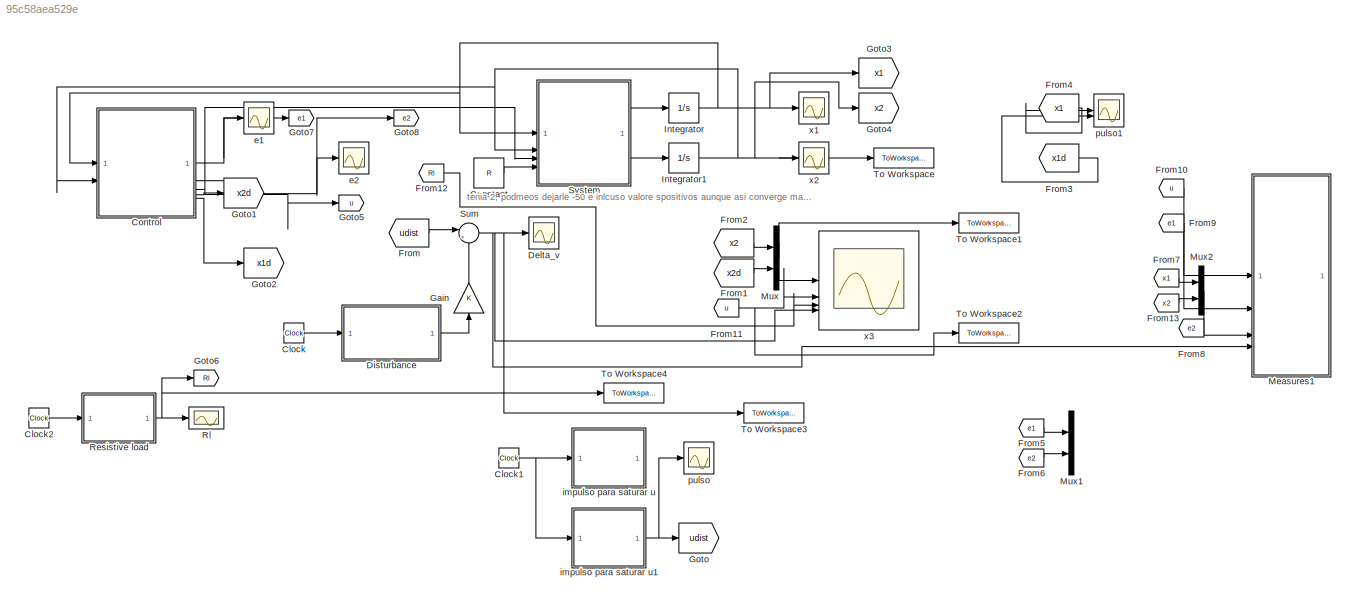
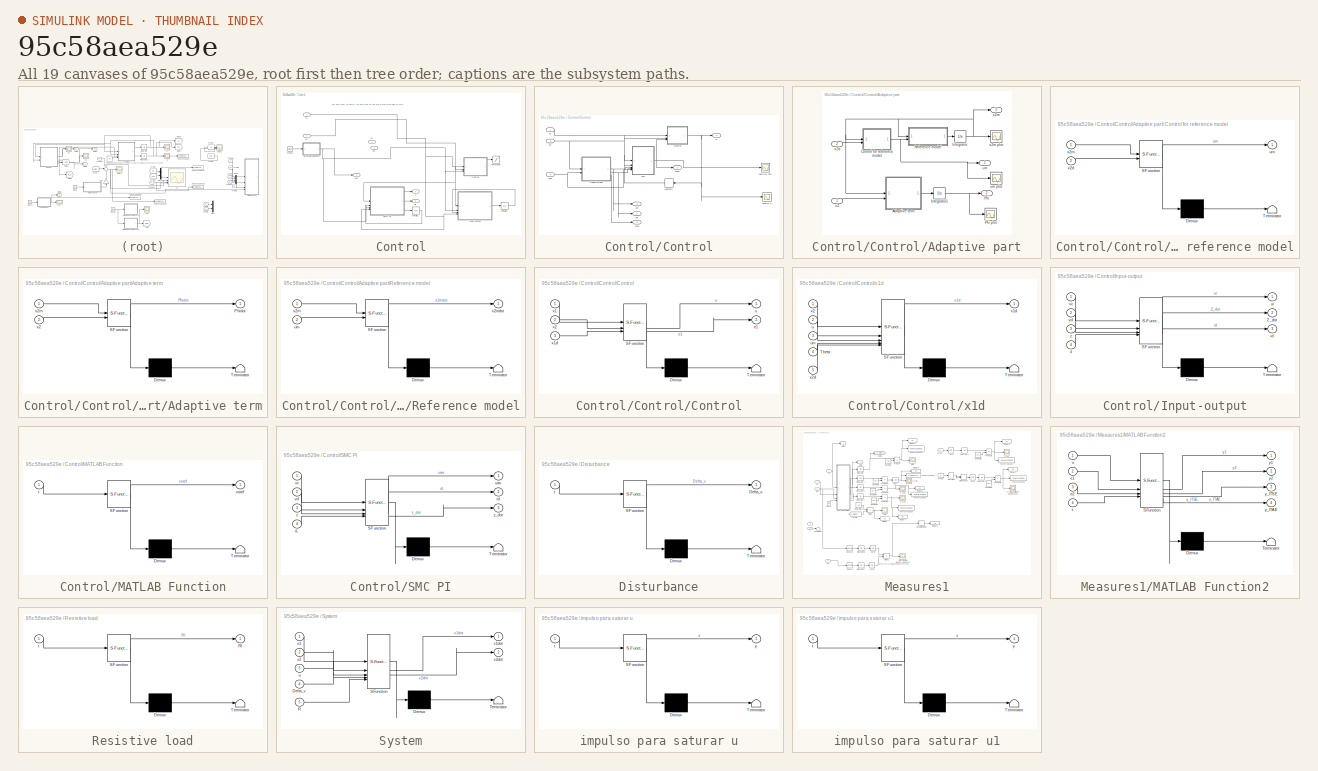
[diagram: thumbnail index - all 19 canvases of the model, root first then tree order]
MODEL slx_95c58aea529e
KIND model
CONFIG AbsTol = auto
CONFIG EnableMultiTasking = off
CONFIG FixedStep = 0.0001
CONFIG InitFcn = paramsTCST
CONFIG MaxStep = auto
CONFIG MinStep = auto
CONFIG RelTol = 1e-3
CONFIG SampleTimeConstraint = Unconstrained
CONFIG SolverName = ode2
CONFIG StartTime = 0.0
CONFIG StopTime = 5
BLOCK [Clock] Clock
BLOCK [Clock] Clock1
BLOCK [Clock] Clock2
BLOCK [Constant] Constant
  Value = R
BLOCK [SubSystem] Control
BLOCK [Clock] Control/Clock1
BLOCK [SubSystem] Control/Control
BLOCK [SubSystem] Control/Control/Adaptive part
BLOCK [SubSystem] Control/Control/Adaptive part/ Control for reference model
  ErrorFcn = Stateflow.Translate.translate
  PermitHierarchicalResolution = ExplicitOnly
  SFBlockType = MATLAB Function
  TreatAsAtomicUnit = on
BLOCK [Demux] Control/Control/Adaptive part/ Control for reference model/ Demux 
  Outputs = 1
BLOCK [S-Function] Control/Control/Adaptive part/ Control for reference model/ SFunction 
  EnableBusSupport = on
  FunctionName = sf_sfun
  Parameters = am,bm,kapam,x2d_dot
  PortCounts = [2 2]
  SFcnIsStateOwnerBlock = off
  SFunctionDeploymentMode = off
  Tag = Stateflow S-Function 9
BLOCK [Terminator] Control/Control/Adaptive part/ Control for reference model/ Terminator 
BLOCK [Outport] Control/Control/Adaptive part/ Control for reference model/um
BLOCK [Inport] Control/Control/Adaptive part/ Control for reference model/x2d
  Port = 2
BLOCK [Inport] Control/Control/Adaptive part/ Control for reference model/x2m
BLOCK [SubSystem] Control/Control/Adaptive part/Adaptive term
  ErrorFcn = Stateflow.Translate.translate
  PermitHierarchicalResolution = ExplicitOnly
  SFBlockType = MATLAB Function
  TreatAsAtomicUnit = on
BLOCK [Demux] Control/Control/Adaptive part/Adaptive term/ Demux 
  Outputs = 1
BLOCK [S-Function] Control/Control/Adaptive part/Adaptive term/ SFunction 
  EnableBusSupport = on
  FunctionName = sf_sfun
  Parameters = lambda
  PortCounts = [2 2]
  SFcnIsStateOwnerBlock = off
  SFunctionDeploymentMode = off
  Tag = Stateflow S-Function 10
BLOCK [Terminator] Control/Control/Adaptive part/Adaptive term/ Terminator 
BLOCK [Outport] Control/Control/Adaptive part/Adaptive term/Phidot
BLOCK [Inport] Control/Control/Adaptive part/Adaptive term/x2
  Port = 2
BLOCK [Inport] Control/Control/Adaptive part/Adaptive term/x2m
BLOCK [Integrator] Control/Control/Adaptive part/Integrator
BLOCK [Integrator] Control/Control/Adaptive part/Integrator1
BLOCK [Outport] Control/Control/Adaptive part/Phi
  Port = 2
BLOCK [Scope] Control/Control/Adaptive part/Phi plot
  Floating = off
  NumInputPorts = 1
  ScopeSpecificationString = Simulink.scopes.TimeScopeBlockCfg('CurrentConfiguration', extmgr.ConfigurationSet(extmgr.Configuration('Core','General UI',true),extmgr.Configuration('Core','Source UI',true),extmgr.Configuration('Sources','WiredSimulink',true,'DataLoggingVariableName','ScopeData2'),extmgr.Configuration('Visuals','Time Domain',true,'SerializedDisplays',{struct('MinYLimReal','-80.47025','MaxYLimReal','8.94114','YLa...<+1540ch>
BLOCK [SubSystem] Control/Control/Adaptive part/Reference model
  ErrorFcn = Stateflow.Translate.translate
  PermitHierarchicalResolution = ExplicitOnly
  SFBlockType = MATLAB Function
  TreatAsAtomicUnit = on
BLOCK [Demux] Control/Control/Adaptive part/Reference model/ Demux 
  Outputs = 1
BLOCK [S-Function] Control/Control/Adaptive part/Reference model/ SFunction 
  EnableBusSupport = on
  FunctionName = sf_sfun
  Parameters = am,bm
  PortCounts = [2 2]
  SFcnIsStateOwnerBlock = off
  SFunctionDeploymentMode = off
  Tag = Stateflow S-Function 11
BLOCK [Terminator] Control/Control/Adaptive part/Reference model/ Terminator 
BLOCK [Inport] Control/Control/Adaptive part/Reference model/um
  Port = 2
BLOCK [Inport] Control/Control/Adaptive part/Reference model/x2m
BLOCK [Outport] Control/Control/Adaptive part/Reference model/x2mdot
BLOCK [Outport] Control/Control/Adaptive part/um
BLOCK [Scope] Control/Control/Adaptive part/um plot
  Floating = off
  NumInputPorts = 1
  ScopeSpecificationString = Simulink.scopes.TimeScopeBlockCfg('CurrentConfiguration', extmgr.ConfigurationSet(extmgr.Configuration('Core','General UI',true),extmgr.Configuration('Core','Source UI',true),extmgr.Configuration('Sources','WiredSimulink',true,'DataLoggingVariableName','ScopeData3'),extmgr.Configuration('Visuals','Time Domain',true,'SerializedDisplays',{struct('MinYLimReal','-221.3523','MaxYLimReal','-91.14506','Y...<+1563ch>
BLOCK [Inport] Control/Control/Adaptive part/x2
BLOCK [Inport] Control/Control/Adaptive part/x2d
  Port = 2
BLOCK [Outport] Control/Control/Adaptive part/x2m
  Port = 3
BLOCK [Scope] Control/Control/Adaptive part/x2m plot
  Floating = off
  NumInputPorts = 1
  ScopeSpecificationString = Simulink.scopes.TimeScopeBlockCfg('CurrentConfiguration', extmgr.ConfigurationSet(extmgr.Configuration('Core','General UI',true),extmgr.Configuration('Core','Source UI',true),extmgr.Configuration('Sources','WiredSimulink',true,'DataLoggingVariableName','ScopeData1'),extmgr.Configuration('Visuals','Time Domain',true,'SerializedDisplays',{struct('MinYLimReal','-11.71865','MaxYLimReal','1.30207','YLa...<+1539ch>
BLOCK [SubSystem] Control/Control/Control
  ErrorFcn = Stateflow.Translate.translate
  PermitHierarchicalResolution = ExplicitOnly
  SFBlockType = MATLAB Function
  TreatAsAtomicUnit = on
BLOCK [Demux] Control/Control/Control/ Demux 
  Outputs = 1
BLOCK [S-Function] Control/Control/Control/ SFunction 
  EnableBusSupport = on
  FunctionName = sf_sfun
  Parameters = C,E,L,Lsig,Msig,R,k1,k2
  PortCounts = [3 3]
  SFcnIsStateOwnerBlock = off
  SFunctionDeploymentMode = off
  Tag = Stateflow S-Function 12
BLOCK [Terminator] Control/Control/Control/ Terminator 
BLOCK [Outport] Control/Control/Control/e1
  Port = 2
BLOCK [Outport] Control/Control/Control/u
BLOCK [Inport] Control/Control/Control/x1
BLOCK [Inport] Control/Control/Control/x1d
  Port = 3
BLOCK [Inport] Control/Control/Control/x2
  Port = 2
BLOCK [Memory] Control/Control/Memory
BLOCK [Scope] Control/Control/auxiliar x1d
  Floating = off
  NumInputPorts = 1
  ScopeSpecificationString = Simulink.scopes.TimeScopeBlockCfg('CurrentConfiguration', extmgr.ConfigurationSet(extmgr.Configuration('Core','General UI',true),extmgr.Configuration('Core','Source UI',true),extmgr.Configuration('Sources','WiredSimulink',true,'DataLoggingVariableName','ScopeData3'),extmgr.Configuration('Visuals','Time Domain',true,'SerializedDisplays',{struct('MinYLimReal','-1212.23183','MaxYLimReal','1619.01338'...<+1568ch>
BLOCK [Scope] Control/Control/control u
  Floating = off
  NumInputPorts = 1
  ScopeSpecificationString = Simulink.scopes.TimeScopeBlockCfg('CurrentConfiguration', extmgr.ConfigurationSet(extmgr.Configuration('Core','General UI',true),extmgr.Configuration('Core','Source UI',true),extmgr.Configuration('Sources','WiredSimulink',true,'DataLoggingVariableName','ScopeData2'),extmgr.Configuration('Visuals','Time Domain',true,'SerializedDisplays',{struct('MinYLimReal','-0.30978','MaxYLimReal','0.70328','YLab...<+1532ch>
BLOCK [Outport] Control/Control/phi
  Port = 4
BLOCK [Outport] Control/Control/u
BLOCK [Outport] Control/Control/um
  Port = 3
BLOCK [Inport] Control/Control/x1
BLOCK [SubSystem] Control/Control/x1d
  ErrorFcn = Stateflow.Translate.translate
  PermitHierarchicalResolution = ExplicitOnly
  SFBlockType = MATLAB Function
  TreatAsAtomicUnit = on
BLOCK [Demux] Control/Control/x1d/ Demux 
  Outputs = 1
BLOCK [S-Function] Control/Control/x1d/ SFunction 
  EnableBusSupport = on
  FunctionName = sf_sfun
  Parameters = C,Qaster,R,k2
  PortCounts = [5 2]
  SFcnIsStateOwnerBlock = off
  SFunctionDeploymentMode = off
  Tag = Stateflow S-Function 13
BLOCK [Terminator] Control/Control/x1d/ Terminator 
BLOCK [Inport] Control/Control/x1d/Theta
  Port = 4
BLOCK [Inport] Control/Control/x1d/u
  Port = 2
BLOCK [Inport] Control/Control/x1d/um
  Port = 3
BLOCK [Outport] Control/Control/x1d/x1d
BLOCK [Inport] Control/Control/x1d/x2
BLOCK [Inport] Control/Control/x1d/x2d
  Port = 5
BLOCK [Outport] Control/Control/x1dd
  Port = 2
BLOCK [Inport] Control/Control/x2
  Port = 2
BLOCK [Inport] Control/Control/x2d
  Port = 3
BLOCK [Outport] Control/Control/x2m
  Port = 5
BLOCK [SubSystem] Control/Input-output
  ErrorFcn = Stateflow.Translate.translate
  PermitHierarchicalResolution = ExplicitOnly
  SFBlockType = MATLAB Function
  TreatAsAtomicUnit = on
BLOCK [Demux] Control/Input-output/ Demux 
  Outputs = 1
BLOCK [S-Function] Control/Input-output/ SFunction 
  EnableBusSupport = on
  FunctionName = sf_sfun
  Parameters = E,k3,kl,kp3
  PortCounts = [4 4]
  SFcnIsStateOwnerBlock = off
  SFunctionDeploymentMode = off
  Tag = Stateflow S-Function 16
BLOCK [Terminator] Control/Input-output/ Terminator 
BLOCK [Outport] Control/Input-output/Z_dot
  Port = 2
BLOCK [Outport] Control/Input-output/id
  Port = 3
BLOCK [Inport] Control/Input-output/il
  Port = 4
BLOCK [Outport] Control/Input-output/ui
BLOCK [Inport] Control/Input-output/vc
BLOCK [Inport] Control/Input-output/vd
  Port = 2
BLOCK [Inport] Control/Input-output/z
  Port = 3
BLOCK [SubSystem] Control/MATLAB Function
  ErrorFcn = Stateflow.Translate.translate
  PermitHierarchicalResolution = ExplicitOnly
  SFBlockType = MATLAB Function
  TreatAsAtomicUnit = on
BLOCK [Demux] Control/MATLAB Function/ Demux 
  Outputs = 1
BLOCK [S-Function] Control/MATLAB Function/ SFunction 
  EnableBusSupport = on
  FunctionName = sf_sfun
  Parameters = x2d
  PortCounts = [1 2]
  SFcnIsStateOwnerBlock = off
  SFunctionDeploymentMode = off
  Tag = Stateflow S-Function 7
BLOCK [Terminator] Control/MATLAB Function/ Terminator 
BLOCK [Inport] Control/MATLAB Function/t
BLOCK [Outport] Control/MATLAB Function/voref
BLOCK [SubSystem] Control/SMC PI
  ErrorFcn = Stateflow.Translate.translate
  PermitHierarchicalResolution = ExplicitOnly
  SFBlockType = MATLAB Function
  TreatAsAtomicUnit = on
BLOCK [Demux] Control/SMC PI/ Demux 
  Outputs = 1
BLOCK [S-Function] Control/SMC PI/ SFunction 
  EnableBusSupport = on
  FunctionName = sf_sfun
  PortCounts = [4 4]
  SFcnIsStateOwnerBlock = off
  SFunctionDeploymentMode = off
  Tag = Stateflow S-Function 17
BLOCK [Terminator] Control/SMC PI/ Terminator 
BLOCK [Inport] Control/SMC PI/iL
  Port = 4
BLOCK [Outport] Control/SMC PI/id
  Port = 2
BLOCK [Outport] Control/SMC PI/uav
BLOCK [Inport] Control/SMC PI/vc
BLOCK [Inport] Control/SMC PI/vd
  Port = 2
BLOCK [Inport] Control/SMC PI/z
  Port = 3
BLOCK [Outport] Control/SMC PI/z_dot
  Port = 3
BLOCK [Saturate] Control/Saturation
  LowerLimit = -0.001
  UpperLimit = 1
BLOCK [Outport] Control/e1
BLOCK [Outport] Control/e2
  Port = 2
BLOCK [Outport] Control/ild
  Port = 5
BLOCK [Outport] Control/u
  NameLocation = right
  Port = 3
BLOCK [Integrator] Control/voltaje1
BLOCK [Integrator] Control/voltaje3
BLOCK [Inport] Control/x1
BLOCK [Inport] Control/x2
  Port = 2
BLOCK [Outport] Control/x2d
  Port = 4
BLOCK [Scope] Delta_v
  Floating = off
  NumInputPorts = 1
  ScopeSpecificationString = Simulink.scopes.TimeScopeBlockCfg('CurrentConfiguration', extmgr.ConfigurationSet(extmgr.Configuration('Core','General UI',true),extmgr.Configuration('Core','Source UI',true),extmgr.Configuration('Sources','WiredSimulink',true,'DataLogging',true,'DataLoggingVariableName','disturbance','DataLoggingSaveFormat','StructureWithTime'),extmgr.Configuration('Visuals','Time Domain',true,'SerializedDisplays...<+1644ch>
BLOCK [SubSystem] Disturbance
  ErrorFcn = Stateflow.Translate.translate
  PermitHierarchicalResolution = ExplicitOnly
  SFBlockType = MATLAB Function
  TreatAsAtomicUnit = on
BLOCK [Demux] Disturbance/ Demux 
  Outputs = 1
BLOCK [S-Function] Disturbance/ SFunction 
  EnableBusSupport = on
  FunctionName = sf_sfun
  PortCounts = [1 2]
  SFcnIsStateOwnerBlock = off
  SFunctionDeploymentMode = off
  Tag = Stateflow S-Function 4
BLOCK [Terminator] Disturbance/ Terminator 
BLOCK [Outport] Disturbance/Delta_v
BLOCK [Inport] Disturbance/t
BLOCK [From] From
  GotoTag = udist
BLOCK [From] From1
  GotoTag = x2d
BLOCK [From] From10
  GotoTag = u
BLOCK [From] From11
  GotoTag = u
BLOCK [From] From12
  GotoTag = Rl
BLOCK [From] From13
  GotoTag = x2
BLOCK [From] From2
  GotoTag = x2
BLOCK [From] From3
  GotoTag = x1d
BLOCK [From] From4
  GotoTag = x1
BLOCK [From] From5
  GotoTag = e1
BLOCK [From] From6
  GotoTag = e2
BLOCK [From] From7
  GotoTag = x1
BLOCK [From] From8
  GotoTag = e2
BLOCK [From] From9
  GotoTag = e1
BLOCK [Gain] Gain
  NameLocation = right
BLOCK [Goto] Goto
  GotoTag = udist
BLOCK [Goto] Goto1
  GotoTag = x2d
BLOCK [Goto] Goto2
  GotoTag = x1d
BLOCK [Goto] Goto3
  GotoTag = x1
BLOCK [Goto] Goto4
  GotoTag = x2
BLOCK [Goto] Goto5
  GotoTag = u
BLOCK [Goto] Goto6
  GotoTag = Rl
BLOCK [Goto] Goto7
  GotoTag = e1
BLOCK [Goto] Goto8
  GotoTag = e2
BLOCK [Integrator] Integrator
BLOCK [Integrator] Integrator1
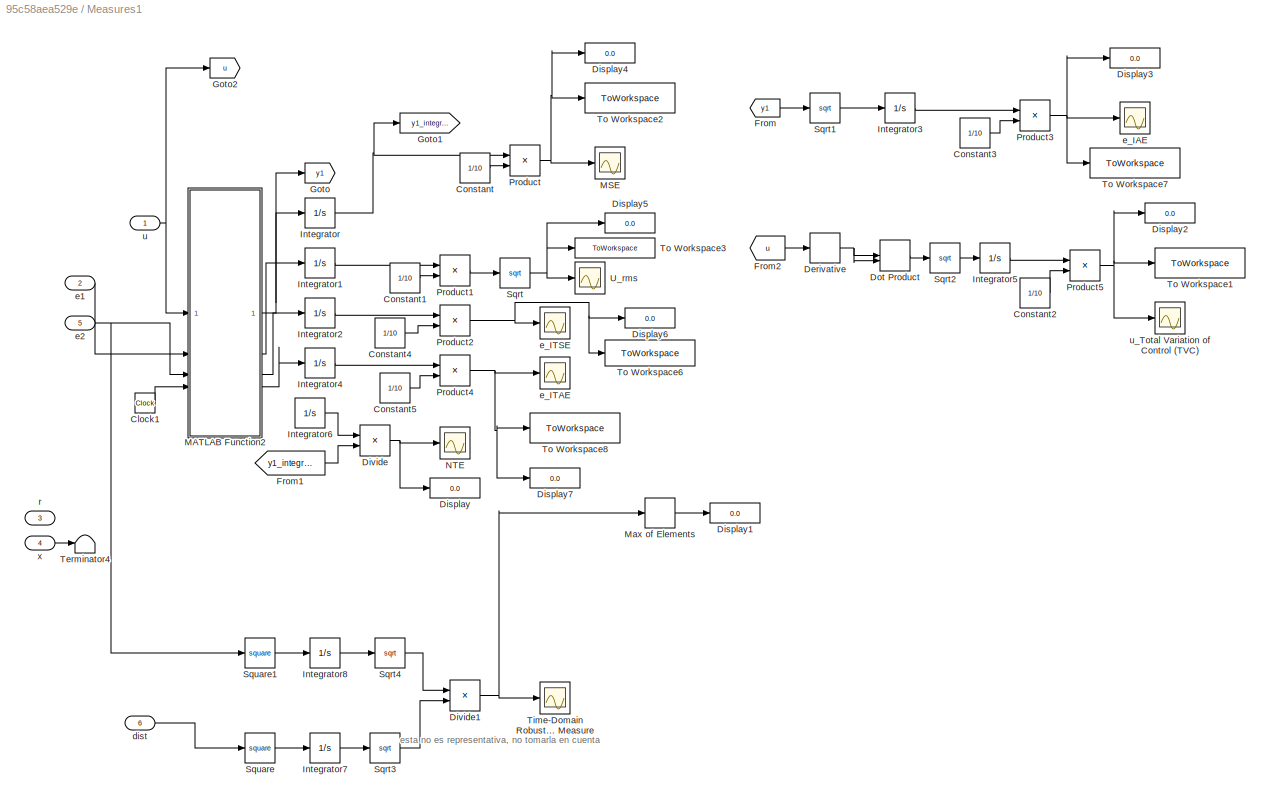
BLOCK [SubSystem] Measures1
BLOCK [Clock] Measures1/Clock1
BLOCK [Constant] Measures1/Constant
  Value = 1/10
BLOCK [Constant] Measures1/Constant1
  Value = 1/10
BLOCK [Constant] Measures1/Constant2
  Value = 1/10
BLOCK [Constant] Measures1/Constant3
  Value = 1/10
BLOCK [Constant] Measures1/Constant4
  Value = 1/10
BLOCK [Constant] Measures1/Constant5
  Value = 1/10
BLOCK [Derivative] Measures1/Derivative
BLOCK [Display] Measures1/Display
  Decimation = 1
BLOCK [Display] Measures1/Display1
  Decimation = 1
BLOCK [Display] Measures1/Display2
  Decimation = 1
BLOCK [Display] Measures1/Display3
  Decimation = 1
BLOCK [Display] Measures1/Display4
  Decimation = 1
BLOCK [Display] Measures1/Display5
  Decimation = 1
BLOCK [Display] Measures1/Display6
  Decimation = 1
BLOCK [Display] Measures1/Display7
  Decimation = 1
BLOCK [Product] Measures1/Divide
  Inputs = /*
BLOCK [Product] Measures1/Divide1
  Inputs = */
BLOCK [DotProduct] Measures1/Dot Product
  OutDataTypeStr = Inherit: Inherit via internal rule
BLOCK [From] Measures1/From
  GotoTag = y1
BLOCK [From] Measures1/From1
  GotoTag = y1_integral
BLOCK [From] Measures1/From2
  GotoTag = u
BLOCK [Goto] Measures1/Goto
  GotoTag = y1
BLOCK [Goto] Measures1/Goto1
  GotoTag = y1_integral
BLOCK [Goto] Measures1/Goto2
  GotoTag = u
BLOCK [Integrator] Measures1/Integrator
BLOCK [Integrator] Measures1/Integrator1
BLOCK [Integrator] Measures1/Integrator2
BLOCK [Integrator] Measures1/Integrator3
BLOCK [Integrator] Measures1/Integrator4
BLOCK [Integrator] Measures1/Integrator5
BLOCK [Integrator] Measures1/Integrator6
BLOCK [Integrator] Measures1/Integrator7
BLOCK [Integrator] Measures1/Integrator8
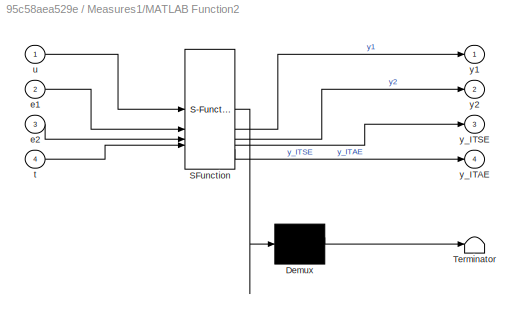
BLOCK [SubSystem] Measures1/MATLAB Function2
  ErrorFcn = Stateflow.Translate.translate
  PermitHierarchicalResolution = ExplicitOnly
  SFBlockType = MATLAB Function
  TreatAsAtomicUnit = on
BLOCK [Demux] Measures1/MATLAB Function2/ Demux 
  Outputs = 1
BLOCK [S-Function] Measures1/MATLAB Function2/ SFunction 
  EnableBusSupport = on
  FunctionName = sf_sfun
  PortCounts = [4 5]
  SFcnIsStateOwnerBlock = off
  SFunctionDeploymentMode = off
  Tag = Stateflow S-Function 8
BLOCK [Terminator] Measures1/MATLAB Function2/ Terminator 
BLOCK [Inport] Measures1/MATLAB Function2/e1
  Port = 2
BLOCK [Inport] Measures1/MATLAB Function2/e2
  Port = 3
BLOCK [Inport] Measures1/MATLAB Function2/t
  Port = 4
BLOCK [Inport] Measures1/MATLAB Function2/u
BLOCK [Outport] Measures1/MATLAB Function2/y1
BLOCK [Outport] Measures1/MATLAB Function2/y2
  Port = 2
BLOCK [Outport] Measures1/MATLAB Function2/y_ITAE
  Port = 4
BLOCK [Outport] Measures1/MATLAB Function2/y_ITSE
  Port = 3
BLOCK [Scope] Measures1/MSE
  Floating = off
  NumInputPorts = 1
  ScopeSpecificationString = Simulink.scopes.TimeScopeBlockCfg('CurrentConfiguration', extmgr.ConfigurationSet(extmgr.Configuration('Core','General UI',true),extmgr.Configuration('Core','Source UI',true),extmgr.Configuration('Sources','WiredSimulink',true,'DataLoggingVariableName','ScopeData2'),extmgr.Configuration('Visuals','Time Domain',true,'SerializedDisplays',{struct('MinYLimReal','-0.00659','MaxYLimReal','0.05929','YLab...<+1589ch>
BLOCK [MinMax] Measures1/Max of Elements
  Function = max
BLOCK [Scope] Measures1/NTE
  Floating = off
  NumInputPorts = 1
  ScopeSpecificationString = Simulink.scopes.TimeScopeBlockCfg('CurrentConfiguration', extmgr.ConfigurationSet(extmgr.Configuration('Core','General UI',true,'DisplayFullSourceName',false,'ShowMainToolbar',true),extmgr.Configuration('Sources','WiredSimulink',true,'DataLogging',false,'DataLoggingVariableName','ScopeData5','DataLoggingLimitDataPoints',false,'DataLoggingMaxPoints','5000','DataLoggingDecimateData',false,'DataLoggi...<+1999ch>
BLOCK [Product] Measures1/Product
BLOCK [Product] Measures1/Product1
BLOCK [Product] Measures1/Product2
BLOCK [Product] Measures1/Product3
BLOCK [Product] Measures1/Product4
BLOCK [Product] Measures1/Product5
BLOCK [Sqrt] Measures1/Sqrt
BLOCK [Sqrt] Measures1/Sqrt1
BLOCK [Sqrt] Measures1/Sqrt2
BLOCK [Sqrt] Measures1/Sqrt3
BLOCK [Sqrt] Measures1/Sqrt4
BLOCK [Math] Measures1/Square
  Operator = square
BLOCK [Math] Measures1/Square1
  Operator = square
BLOCK [Terminator] Measures1/Terminator4
BLOCK [Scope] Measures1/Time-Domain Robustness Measure 
  Floating = off
  NumInputPorts = 1
  ScopeSpecificationString = Simulink.scopes.TimeScopeBlockCfg('CurrentConfiguration', extmgr.ConfigurationSet(extmgr.Configuration('Core','General UI',true),extmgr.Configuration('Core','Source UI',true),extmgr.Configuration('Sources','WiredSimulink',true,'DataLoggingVariableName','ScopeData3'),extmgr.Configuration('Visuals','Time Domain',true,'SerializedDisplays',{struct('MinYLimReal','-104.50678','MaxYLimReal','940.94979','...<+1601ch>
BLOCK [ToWorkspace] Measures1/To Workspace1
  FixptAsFi = on
  MaxDataPoints = inf
  SampleTime = -1
  SaveFormat = Timeseries
  VariableName = IAE_TVC
BLOCK [ToWorkspace] Measures1/To Workspace2
  FixptAsFi = on
  MaxDataPoints = inf
  SampleTime = -1
  SaveFormat = Timeseries
  VariableName = MSE_Ada
BLOCK [ToWorkspace] Measures1/To Workspace3
  FixptAsFi = on
  MaxDataPoints = inf
  SampleTime = -1
  SaveFormat = Timeseries
  VariableName = U_rms_Ada
BLOCK [ToWorkspace] Measures1/To Workspace6
  FixptAsFi = on
  MaxDataPoints = inf
  SampleTime = -1
  SaveFormat = Timeseries
  VariableName = ITSE_Ada
BLOCK [ToWorkspace] Measures1/To Workspace7
  FixptAsFi = on
  MaxDataPoints = inf
  SampleTime = -1
  SaveFormat = Timeseries
  VariableName = IAE_Ada
BLOCK [ToWorkspace] Measures1/To Workspace8
  FixptAsFi = on
  MaxDataPoints = inf
  SampleTime = -1
  SaveFormat = Timeseries
  VariableName = ITAE_Ada
BLOCK [Scope] Measures1/U_rms
  Floating = off
  NumInputPorts = 1
  ScopeSpecificationString = Simulink.scopes.TimeScopeBlockCfg('CurrentConfiguration', extmgr.ConfigurationSet(extmgr.Configuration('Core','General UI',true),extmgr.Configuration('Core','Source UI',true),extmgr.Configuration('Sources','WiredSimulink',true,'DataLoggingVariableName','ScopeData7'),extmgr.Configuration('Visuals','Time Domain',true,'SerializedDisplays',{struct('MinYLimReal','-0.06201','MaxYLimReal','0.55806','YLab...<+1586ch>
BLOCK [Inport] Measures1/dist
  Port = 6
BLOCK [Inport] Measures1/e1
  Port = 2
BLOCK [Inport] Measures1/e2
  Port = 5
BLOCK [Scope] Measures1/e_IAE
  Floating = off
  NumInputPorts = 1
  ScopeSpecificationString = Simulink.scopes.TimeScopeBlockCfg('CurrentConfiguration', extmgr.ConfigurationSet(extmgr.Configuration('Core','General UI',true),extmgr.Configuration('Core','Source UI',true),extmgr.Configuration('Sources','WiredSimulink',true,'DataLoggingVariableName','ScopeData2'),extmgr.Configuration('Visuals','Time Domain',true,'SerializedDisplays',{struct('MinYLimReal','-0.00751','MaxYLimReal','0.06757','YLab...<+1592ch>
BLOCK [Scope] Measures1/e_ITAE
  Floating = off
  NumInputPorts = 1
  ScopeSpecificationString = Simulink.scopes.TimeScopeBlockCfg('CurrentConfiguration', extmgr.ConfigurationSet(extmgr.Configuration('Core','General UI',true),extmgr.Configuration('Core','Source UI',true),extmgr.Configuration('Sources','WiredSimulink',true,'DataLoggingVariableName','ScopeData3'),extmgr.Configuration('Visuals','Time Domain',true,'SerializedDisplays',{struct('MinYLimReal','-0.03861','MaxYLimReal','0.34752','YLab...<+1594ch>
BLOCK [Scope] Measures1/e_ITSE
  Floating = off
  NumInputPorts = 1
  ScopeSpecificationString = Simulink.scopes.TimeScopeBlockCfg('CurrentConfiguration', extmgr.ConfigurationSet(extmgr.Configuration('Core','General UI',true),extmgr.Configuration('Core','Source UI',true),extmgr.Configuration('Sources','WiredSimulink',true,'DataLoggingVariableName','ScopeData1'),extmgr.Configuration('Visuals','Time Domain',true,'SerializedDisplays',{struct('MinYLimReal','-0.03527','MaxYLimReal','0.31746','YLab...<+1594ch>
BLOCK [Inport] Measures1/r
  Port = 3
BLOCK [Inport] Measures1/u
BLOCK [Scope] Measures1/u_Total Variation of Control (TVC)
  Floating = off
  NumInputPorts = 1
  ScopeSpecificationString = Simulink.scopes.TimeScopeBlockCfg('CurrentConfiguration', extmgr.ConfigurationSet(extmgr.Configuration('Core','General UI',true),extmgr.Configuration('Core','Source UI',true),extmgr.Configuration('Sources','WiredSimulink',true,'DataLoggingVariableName','ScopeData4'),extmgr.Configuration('Visuals','Time Domain',true,'SerializedDisplays',{struct('MinYLimReal','-0.02429','MaxYLimReal','0.21864','YLab...<+1590ch>
BLOCK [Inport] Measures1/x
  Port = 4
BLOCK [Mux] Mux
  DisplayOption = bar
  Inputs = 2
BLOCK [Mux] Mux1
  DisplayOption = bar
  Inputs = 2
BLOCK [Mux] Mux2
  DisplayOption = bar
  Inputs = 2
BLOCK [SubSystem] Resistive load
  ErrorFcn = Stateflow.Translate.translate
  PermitHierarchicalResolution = ExplicitOnly
  SFBlockType = MATLAB Function
  TreatAsAtomicUnit = on
BLOCK [Demux] Resistive load/ Demux 
  Outputs = 1
BLOCK [S-Function] Resistive load/ SFunction 
  EnableBusSupport = on
  FunctionName = sf_sfun
  Parameters = Rlnom
  PortCounts = [1 2]
  SFcnIsStateOwnerBlock = off
  SFunctionDeploymentMode = off
  Tag = Stateflow S-Function 14
BLOCK [Terminator] Resistive load/ Terminator 
BLOCK [Outport] Resistive load/Rl
BLOCK [Inport] Resistive load/t
BLOCK [Scope] Rl
  Floating = off
  NumInputPorts = 1
  ScopeSpecificationString = Simulink.scopes.TimeScopeBlockCfg('CurrentConfiguration', extmgr.ConfigurationSet(extmgr.Configuration('Core','General UI',true),extmgr.Configuration('Core','Source UI',true),extmgr.Configuration('Sources','WiredSimulink',true,'DataLoggingVariableName','ScopeData1'),extmgr.Configuration('Visuals','Time Domain',true,'SerializedDisplays',{struct('MinYLimReal','30.00000','MaxYLimReal','50.00000','YLa...<+1545ch>
BLOCK [Sum] Sum
  Inputs = |++
BLOCK [SubSystem] System
  ErrorFcn = Stateflow.Translate.translate
  PermitHierarchicalResolution = ExplicitOnly
  SFBlockType = MATLAB Function
  TreatAsAtomicUnit = on
BLOCK [Demux] System/ Demux 
  Outputs = 1
BLOCK [S-Function] System/ SFunction 
  EnableBusSupport = on
  FunctionName = sf_sfun
  Parameters = C,E,L
  PortCounts = [5 3]
  SFcnIsStateOwnerBlock = off
  SFunctionDeploymentMode = off
  Tag = Stateflow S-Function 2
BLOCK [Terminator] System/ Terminator 
BLOCK [Inport] System/Delta_v
  Port = 4
BLOCK [Inport] System/R
  Port = 5
BLOCK [Inport] System/u
  Port = 3
BLOCK [Inport] System/x1
BLOCK [Outport] System/x1dot
BLOCK [Inport] System/x2
  Port = 2
BLOCK [Outport] System/x2dot
  Port = 2
BLOCK [ToWorkspace] To Workspace
  FixptAsFi = on
  MaxDataPoints = inf
  SampleTime = -1
  SaveFormat = Structure With Time
  VariableName = vout
BLOCK [ToWorkspace] To Workspace1
  FixptAsFi = on
  MaxDataPoints = inf
  SampleTime = -1
  SaveFormat = Structure With Time
  VariableName = voltage
BLOCK [ToWorkspace] To Workspace2
  FixptAsFi = on
  MaxDataPoints = inf
  SampleTime = -1
  SaveFormat = Structure With Time
  VariableName = control
BLOCK [ToWorkspace] To Workspace3
  FixptAsFi = on
  MaxDataPoints = inf
  SampleTime = -1
  SaveFormat = Structure With Time
  VariableName = disturbance1
BLOCK [ToWorkspace] To Workspace4
  FixptAsFi = on
  MaxDataPoints = inf
  SampleTime = -1
  SaveFormat = Structure With Time
  VariableName = load
BLOCK [Scope] e1
  Floating = off
  NumInputPorts = 1
  ScopeSpecificationString = Simulink.scopes.TimeScopeBlockCfg('CurrentConfiguration', extmgr.ConfigurationSet(extmgr.Configuration('Core','General UI',true),extmgr.Configuration('Core','Source UI',true),extmgr.Configuration('Sources','WiredSimulink',true,'DataLoggingVariableName','ScopeData3'),extmgr.Configuration('Visuals','Time Domain',true,'SerializedDisplays',{struct('MinYLimReal','-1.00000','MaxYLimReal','1.00000','YLab...<+1627ch>
BLOCK [Scope] e2
  Floating = off
  NumInputPorts = 1
  ScopeSpecificationString = Simulink.scopes.TimeScopeBlockCfg('CurrentConfiguration', extmgr.ConfigurationSet(extmgr.Configuration('Core','General UI',true),extmgr.Configuration('Core','Source UI',true),extmgr.Configuration('Sources','WiredSimulink',true,'DataLoggingVariableName','ScopeData4'),extmgr.Configuration('Visuals','Time Domain',true,'SerializedDisplays',{struct('MinYLimReal','-1.00000','MaxYLimReal','1.00000','YLab...<+1627ch>
BLOCK [SubSystem] impulso para saturar u
  ErrorFcn = Stateflow.Translate.translate
  PermitHierarchicalResolution = ExplicitOnly
  SFBlockType = MATLAB Function
  TreatAsAtomicUnit = on
BLOCK [Demux] impulso para saturar u/ Demux 
  Outputs = 1
BLOCK [S-Function] impulso para saturar u/ SFunction 
  EnableBusSupport = on
  FunctionName = sf_sfun
  PortCounts = [1 2]
  SFcnIsStateOwnerBlock = off
  SFunctionDeploymentMode = off
  Tag = Stateflow S-Function 6
BLOCK [Terminator] impulso para saturar u/ Terminator 
BLOCK [Inport] impulso para saturar u/t
BLOCK [Outport] impulso para saturar u/y
BLOCK [SubSystem] impulso para saturar u1
  ErrorFcn = Stateflow.Translate.translate
  PermitHierarchicalResolution = ExplicitOnly
  SFBlockType = MATLAB Function
  TreatAsAtomicUnit = on
BLOCK [Demux] impulso para saturar u1/ Demux 
  Outputs = 1
BLOCK [S-Function] impulso para saturar u1/ SFunction 
  EnableBusSupport = on
  FunctionName = sf_sfun
  PortCounts = [1 2]
  SFcnIsStateOwnerBlock = off
  SFunctionDeploymentMode = off
  Tag = Stateflow S-Function 15
BLOCK [Terminator] impulso para saturar u1/ Terminator 
BLOCK [Inport] impulso para saturar u1/t
BLOCK [Outport] impulso para saturar u1/y
BLOCK [Scope] pulso
  Floating = off
  NumInputPorts = 1
  ScopeSpecificationString = Simulink.scopes.TimeScopeBlockCfg('CurrentConfiguration', extmgr.ConfigurationSet(extmgr.Configuration('Core','General UI',true),extmgr.Configuration('Core','Source UI',true),extmgr.Configuration('Sources','WiredSimulink',true,'DataLoggingVariableName','ScopeData1'),extmgr.Configuration('Visuals','Time Domain',true,'SerializedDisplays',{struct('MinYLimReal','-1.875','MaxYLimReal','16.875','YLabelR...<+1597ch>
BLOCK [Scope] pulso1
  Floating = off
  NumInputPorts = 2
  ScopeSpecificationString = Simulink.scopes.TimeScopeBlockCfg('CurrentConfiguration', extmgr.ConfigurationSet(extmgr.Configuration('Core','General UI',true),extmgr.Configuration('Core','Source UI',true),extmgr.Configuration('Sources','WiredSimulink',true,'DataLoggingVariableName','ScopeData2'),extmgr.Configuration('Visuals','Time Domain',true,'SerializedDisplays',{struct('MinYLimReal','-0.90135','MaxYLimReal','8.11217','YLab...<+1600ch>
BLOCK [Scope] x1
  Floating = off
  NumInputPorts = 1
  ScopeSpecificationString = Simulink.scopes.TimeScopeBlockCfg('CurrentConfiguration', extmgr.ConfigurationSet(extmgr.Configuration('Core','General UI',true),extmgr.Configuration('Core','Source UI',true),extmgr.Configuration('Sources','WiredSimulink',true,'DataLoggingVariableName','ScopeData1'),extmgr.Configuration('Visuals','Time Domain',true,'SerializedDisplays',{struct('MinYLimReal','-0.88906','MaxYLimReal','8.00158','YLab...<+1592ch>
BLOCK [Scope] x2
  Floating = off
  NumInputPorts = 1
  ScopeSpecificationString = Simulink.scopes.TimeScopeBlockCfg('CurrentConfiguration', extmgr.ConfigurationSet(extmgr.Configuration('Core','General UI',true),extmgr.Configuration('Core','Source UI',true),extmgr.Configuration('Sources','WiredSimulink',true,'DataLoggingVariableName','ScopeData2'),extmgr.Configuration('Visuals','Time Domain',true,'SerializedDisplays',{struct('MinYLimReal','-69.19989','MaxYLimReal','29.9111','YLa...<+1622ch>
BLOCK [Scope] x3
  Floating = off
  NumInputPorts = 4
  ScopeSpecificationString = Simulink.scopes.TimeScopeBlockCfg('CurrentConfiguration', extmgr.ConfigurationSet(extmgr.Configuration('Core','General UI',true),extmgr.Configuration('Core','Source UI',true),extmgr.Configuration('Sources','WiredSimulink',true,'DataLoggingVariableName','experimentos','DataLogging',true,'DataLoggingSaveFormat','StructureWithTime'),extmgr.Configuration('Visuals','Time Domain',true,'SerializedDisplay...<+4114ch>
ANNOTATION (root): tenia 2, podmeos dejarle -50 e inlcuso valore spositivos aunque asi converge mas lento
ANNOTATION Control: hay que variar Vd hasta -120 para que se vea que el control de ellos no sirve
ANNOTATION Measures1: esta no es representativa, no tomarla en cuenta
NET Clock1:1 -> impulso para saturar u1:1, impulso para saturar u:1
LINE Clock2:1 -> Resistive load:1
LINE Clock:1 -> Disturbance:1
LINE Constant:1 -> System:5
LINE Control/Clock1:1 -> Control/MATLAB Function:1
NET Control/Control/Adaptive part/ Control for reference model:1 -> Control/Control/Adaptive part/Reference model:2, Control/Control/Adaptive part/um plot:1, Control/Control/Adaptive part/um:1
LINE Control/Control/Adaptive part/Adaptive term:1 -> Control/Control/Adaptive part/Integrator1:1
NET Control/Control/Adaptive part/Integrator1:1 -> Control/Control/Adaptive part/Phi plot:1, Control/Control/Adaptive part/Phi:1
NET Control/Control/Adaptive part/Integrator:1 -> Control/Control/Adaptive part/ Control for reference model:1, Control/Control/Adaptive part/Adaptive term:1, Control/Control/Adaptive part/Reference model:1, Control/Control/Adaptive part/x2m plot:1, Control/Control/Adaptive part/x2m:1
LINE Control/Control/Adaptive part/Reference model:1 -> Control/Control/Adaptive part/Integrator:1
LINE Control/Control/Adaptive part/x2:1 -> Control/Control/Adaptive part/Adaptive term:2
LINE Control/Control/Adaptive part/x2d:1 -> Control/Control/Adaptive part/ Control for reference model:2
NET Control/Control/Adaptive part:1 -> Control/Control/um:1, Control/Control/x1d:3
NET Control/Control/Adaptive part:2 -> Control/Control/phi:1, Control/Control/x1d:4
LINE Control/Control/Adaptive part:3 -> Control/Control/x2m:1
NET Control/Control/Control:1 -> Control/Control/Memory:1, Control/Control/control u:1, Control/Control/u:1
LINE Control/Control/Memory:1 -> Control/Control/x1d:2
LINE Control/Control/x1:1 -> Control/Control/Control:1
NET Control/Control/x1d:1 -> Control/Control/Control:3, Control/Control/auxiliar x1d:1, Control/Control/x1dd:1
NET Control/Control/x2:1 -> Control/Control/Adaptive part:1, Control/Control/Control:2, Control/Control/x1d:1
NET Control/Control/x2d:1 -> Control/Control/Adaptive part:2, Control/Control/x1d:5
LINE Control/Control:1 -> Control/Saturation:1
LINE Control/Input-output:2 -> Control/voltaje3:1
NET Control/MATLAB Function:1 -> Control/Control:3, Control/Input-output:2, Control/SMC PI:2, Control/x2d:1
LINE Control/SMC PI:1 -> Control/u:1
LINE Control/SMC PI:2 -> Control/ild:1
LINE Control/SMC PI:3 -> Control/voltaje1:1
LINE Control/voltaje1:1 -> Control/SMC PI:3
LINE Control/voltaje3:1 -> Control/Input-output:3
NET Control/x1:1 -> Control/Control:1, Control/Input-output:4, Control/SMC PI:4
NET Control/x2:1 -> Control/Control:2, Control/Input-output:1, Control/SMC PI:1
NET Control:1 -> Goto7:1, e1:1
NET Control:2 -> Goto8:1, e2:1
NET Control:3 -> Goto5:1, System:3
LINE Control:4 -> Goto1:1
LINE Control:5 -> Goto2:1
LINE Disturbance:1 -> Gain:1
LINE From10:1 -> Measures1:1
NET From11:1 -> To Workspace2:1, x3:2
LINE From12:1 -> x3:3
LINE From13:1 -> Mux2:2
LINE From1:1 -> Mux:2
LINE From2:1 -> Mux:1
LINE From3:1 -> pulso1:2
LINE From4:1 -> pulso1:1
LINE From5:1 -> Mux1:1
LINE From6:1 -> Mux1:2
LINE From7:1 -> Mux2:1
LINE From9:1 -> Measures1:2
LINE From:1 -> Sum:1
LINE Gain:1 -> Sum:2
NET Integrator1:1 -> Control:2, Goto4:1, System:2, To Workspace:1, x2:1
NET Integrator:1 -> Control:1, Goto3:1, System:1, x1:1
LINE Measures1/Clock1:1 -> Measures1/MATLAB Function2:4
LINE Measures1/Constant1:1 -> Measures1/Product1:2
LINE Measures1/Constant2:1 -> Measures1/Product5:2
LINE Measures1/Constant3:1 -> Measures1/Product3:2
LINE Measures1/Constant4:1 -> Measures1/Product2:2
LINE Measures1/Constant5:1 -> Measures1/Product4:2
LINE Measures1/Constant:1 -> Measures1/Product:2
NET Measures1/Derivative:1 -> Measures1/Dot Product:1, Measures1/Dot Product:2
NET Measures1/Divide1:1 -> Measures1/Max of Elements:1, Measures1/Time-Domain Robustness Measure :1
NET Measures1/Divide:1 -> Measures1/Display:1, Measures1/NTE:1
LINE Measures1/Dot Product:1 -> Measures1/Sqrt2:1
LINE Measures1/From1:1 -> Measures1/Divide:2
LINE Measures1/From2:1 -> Measures1/Derivative:1
LINE Measures1/From:1 -> Measures1/Sqrt1:1
LINE Measures1/Integrator1:1 -> Measures1/Product1:1
LINE Measures1/Integrator2:1 -> Measures1/Product2:1
LINE Measures1/Integrator3:1 -> Measures1/Product3:1
LINE Measures1/Integrator4:1 -> Measures1/Product4:1
LINE Measures1/Integrator5:1 -> Measures1/Product5:1
LINE Measures1/Integrator6:1 -> Measures1/Divide:1
LINE Measures1/Integrator7:1 -> Measures1/Sqrt3:1
LINE Measures1/Integrator8:1 -> Measures1/Sqrt4:1
NET Measures1/Integrator:1 -> Measures1/Goto1:1, Measures1/Product:1
NET Measures1/MATLAB Function2:1 -> Measures1/Goto:1, Measures1/Integrator:1
LINE Measures1/MATLAB Function2:2 -> Measures1/Integrator1:1
LINE Measures1/MATLAB Function2:3 -> Measures1/Integrator2:1
LINE Measures1/MATLAB Function2:4 -> Measures1/Integrator4:1
LINE Measures1/Max of Elements:1 -> Measures1/Display1:1
LINE Measures1/Product1:1 -> Measures1/Sqrt:1
NET Measures1/Product2:1 -> Measures1/Display6:1, Measures1/To Workspace6:1, Measures1/e_ITSE:1
NET Measures1/Product3:1 -> Measures1/Display3:1, Measures1/To Workspace7:1, Measures1/e_IAE:1
NET Measures1/Product4:1 -> Measures1/Display7:1, Measures1/To Workspace8:1, Measures1/e_ITAE:1
NET Measures1/Product5:1 -> Measures1/Display2:1, Measures1/To Workspace1:1, Measures1/u_Total Variation of Control (TVC):1
NET Measures1/Product:1 -> Measures1/Display4:1, Measures1/MSE:1, Measures1/To Workspace2:1
LINE Measures1/Sqrt1:1 -> Measures1/Integrator3:1
LINE Measures1/Sqrt2:1 -> Measures1/Integrator5:1
LINE Measures1/Sqrt3:1 -> Measures1/Divide1:2
LINE Measures1/Sqrt4:1 -> Measures1/Divide1:1
NET Measures1/Sqrt:1 -> Measures1/Display5:1, Measures1/To Workspace3:1, Measures1/U_rms:1
LINE Measures1/Square1:1 -> Measures1/Integrator8:1
LINE Measures1/Square:1 -> Measures1/Integrator7:1
LINE Measures1/dist:1 -> Measures1/Square:1
LINE Measures1/e1:1 -> Measures1/MATLAB Function2:2
NET Measures1/e2:1 -> Measures1/MATLAB Function2:3, Measures1/Square1:1
NET Measures1/u:1 -> Measures1/Goto2:1, Measures1/MATLAB Function2:1
LINE Measures1/x:1 -> Measures1/Terminator4:1
LINE Mux2:1 -> Measures1:4
NET Mux:1 -> To Workspace1:1, x3:1
NET Resistive load:1 -> Goto6:1, Rl:1, To Workspace4:1
NET Sum:1 -> Delta_v:1, Measures1:6, To Workspace3:1, x3:4
LINE System:1 -> Integrator:1
LINE System:2 -> Integrator1:1
NET impulso para saturar u1:1 -> Goto:1, pulso:1
note: NET lines group one-source signal fan-out (src -> all destinations, sorted); 1:1 wires keep LINE
CHART Control/Control/Adaptive part/Reference model states=1 transitions=1
  STATE_LABEL 'eML_blk_kernel()'
  STATE_LABEL 'SCRIPT:\nfunction x2mdot = mrsystem(x2m, um, bm, am)\n\nx2mdot = - am * x2m  +  bm * um ;\n'
CHART Control/Control/Control states=1 transitions=1
  STATE_LABEL 'eML_blk_kernel()'
  STATE_LABEL 'SCRIPT:\n% function [u, e1] = control(x1, x2, x1d, x1d_dot, E, R, C, L, k1, k2)\n% \n% %error\n% e1 = x1 - x1d;\n% \n% %control\n% u = ( (  k1*L*15*(e1) + E  ) / ( x2 - E) ) + 1;\n\n\n\nfunction [u, e1] = control(x1, x2, x1d, E, R, C, L, k1, k2, Msig, Lsig)\n% CONTROL  Nonlinear control with semi-saturation sigma(·) from the paper\n%\n% Inputs:\n%   x1, x2     - states (i_L, v_o)\n%   x1d        - desired inducto...<+1429ch>'
CHART Control/Control/x1d states=1 transitions=1
  STATE_LABEL 'eML_blk_kernel()'
  STATE_LABEL 'SCRIPT:\nfunction x1d = des(x2, u, um, Theta, k2, C, R, Qaster, x2d)\n\n%error\ne2 = x2 - x2d;\n\n%Auxiliar control\n\n%x1d = (( - C*Theta*x2 - C*Qaster*um + k2*C*sign(e2) ) / (1-u))+ 0.001;\nx1d = C * (k2 * sqrt(abs(e2)) * sign(e2) - Theta * x2 - Qaster * um) / (1 - u);\n'
CHART Resistive load states=1 transitions=1
  STATE_LABEL 'eML_blk_kernel()'
  STATE_LABEL 'SCRIPT:\nfunction Rl = fcn(Rlnom, t)\n\nRl = Rlnom + 10*sin(1.5*t);\n'
CHART impulso para saturar u1 states=1 transitions=1
  STATE_LABEL 'eML_blk_kernel()'
  STATE_LABEL 'SCRIPT:\nfunction y = pulso_montana_doble(t)\n% y = pulso_montana_doble(t)\n% Genera DOS pulsos "montaña" suaves:\n%   - Cada pulso sube suavemente de 0 a 1 y luego baja\n%   - Se pueden ajustar tiempos y amplitudes por separado\n\n    % PRIMER pulso\n    t0_1 = 5;       % inicio\n    t1_1 = 5.5;     % fin\n    A1   = 10;      % amplitud\n\n    % SEGUNDO pulso (alrededor de t = 15 s)\n    t0_2 = 15;      % ini...<+770ch>'
CHART Control/Input-output states=1 transitions=1
  STATE_LABEL 'eML_blk_kernel()'
  STATE_LABEL 'SCRIPT:\nfunction [ui,Z_dot,id] = fcn(kp3,vc,kl,vd,k3, z, E, il)\n\nev = vc - vd ;\nZ_dot = ev;\nid = kp3*ev + k3*z;\n\nui = (-vc - kl*(il - id))/ (E - vc);'
CHART Control/SMC PI states=1 transitions=1
  STATE_LABEL 'eML_blk_kernel()'
  STATE_LABEL 'SCRIPT:\nfunction [uav, id, z_dot] = fcn(vc, vd, z, iL)\n\n% Error de voltaje\nev = vc - vd;\n\n% Dinámica de z\nz_dot = ev;\n\nkP = -0.2;\nkI = -10;\n\n% Corriente de referencia\nid = kP*ev + kI*z;\n\n% Ley de control sliding mode\nuav = 0.5*(1 - sign(iL - id));\n\nend\n'
CHART System states=1 transitions=1
  STATE_LABEL 'eML_blk_kernel()'
  STATE_LABEL 'SCRIPT:\nfunction [x1dot, x2dot] = system(x1, x2, u, Delta_v, E, C, L, R)\n\n%System\nx1dot = (1-u)*(1/L)*x2 + u*(E/L);\nx2dot = -(1-u)*(1/C)*x1 - (1/( (R + 0*R)*C ))*x2 + Delta_v;\n\n\n'
CHART Disturbance states=1 transitions=1
  STATE_LABEL 'eML_blk_kernel()'
  STATE_LABEL 'SCRIPT:\nfunction Delta_v = dist(t)\n\nDelta_v = 2*sin(1*t);\n'
CHART impulso para saturar u states=1 transitions=1
  STATE_LABEL 'eML_blk_kernel()'
  STATE_LABEL 'SCRIPT:\nfunction y = pulso_montana(t)\n% y = pulso_montana(t, t0, t1, A)\n% Pulso "montaña" suave:\n%   - y = 0 antes de t0 y después de t1\n%   - Sube suave de 0 a 1 entre t0 y (t0+t1)/2\n%   - Baja suave de 1 a 0 entre (t0+t1)/2 y t1\n%   - Amplitud A (por defecto 1)\n%\n% Recomendado: \nt0 = 5; t1 = 5.5; A = 10;\n\n    if nargin < 4, A = 10; end\n\n    if t <= t0 || t >= t1\n        y = 0;\n        return;\n  ...<+426ch>'
CHART Control/MATLAB Function states=1 transitions=1
  STATE_LABEL 'eML_blk_kernel()'
  STATE_LABEL 'SCRIPT:\nfunction voref = step_signal(t, x2d)\n% Generates a step signal increasing from 160 to 220 in steps of 20\n% over a simulation time of 0 to 10 seconds.\n\n    % Define step times and corresponding values\n    %step_times = [0, 3.3, 6.6, 10]; % Change points\n    %step_values = [vod-40, vod-20, vod, vod]; % Corresponding values\n    step_times = [0, 5, 10, 15, 18]; % Change points\n    %step_values...<+487ch>'
CHART Measures1/MATLAB Function2 states=1 transitions=1
  STATE_LABEL 'eML_blk_kernel()'
  STATE_LABEL 'SCRIPT:\nfunction [y1, y2, y_ITSE, y_ITAE] = fcn(u, e1,e2, t)\n\n\n\n% Control único\nu_ctrl = u(1,1);\n\n% Métricas\ny1 = e1^2 + e2^2;          % Error cuadrático total\ny2 = u_ctrl^2 + u_ctrl^2 ;             % Esfuerzo de control\n\ny_ITSE = t * y1;           % Integral Time Squared Error\ny_ITAE = t * (abs(e1) + abs(e2)); % Integral Time Absolute Error\n\n% Normalized Tracking Error con 2 referencias\n%rint = ...<+22ch>'
CHART Control/Control/Adaptive part/ Control for reference model states=1 transitions=1
  STATE_LABEL 'eML_blk_kernel()'
  STATE_LABEL 'SCRIPT:\nfunction um = MRC(x2m, x2d_dot, am, bm, kapam, x2d)\n\num = (1/bm) * ( x2d_dot + am * x2m - kapam * (x2m - x2d) );\n'
CHART Control/Control/Adaptive part/Adaptive term states=1 transitions=1
  STATE_LABEL 'eML_blk_kernel()'
  STATE_LABEL 'SCRIPT:\nfunction Phidot = adaptive(x2m, x2, lambda)\n\n%error:\ne2 = x2 - x2m;\n\n%Adaptive Law:\nPhidot = - lambda*e2*x2;\n'
CHART  states=0 transitions=0
CHART  states=0 transitions=0
CHART  states=0 transitions=0
CHART  states=0 transitions=0
CHART  states=0 transitions=0
CHART  states=0 transitions=0
CHART  states=0 transitions=0
CHART  states=0 transitions=0
CHART  states=0 transitions=0
CHART  states=0 transitions=0
CHART  states=0 transitions=0
CHART  states=0 transitions=0
CHART  states=0 transitions=0
CHART  states=0 transitions=0
